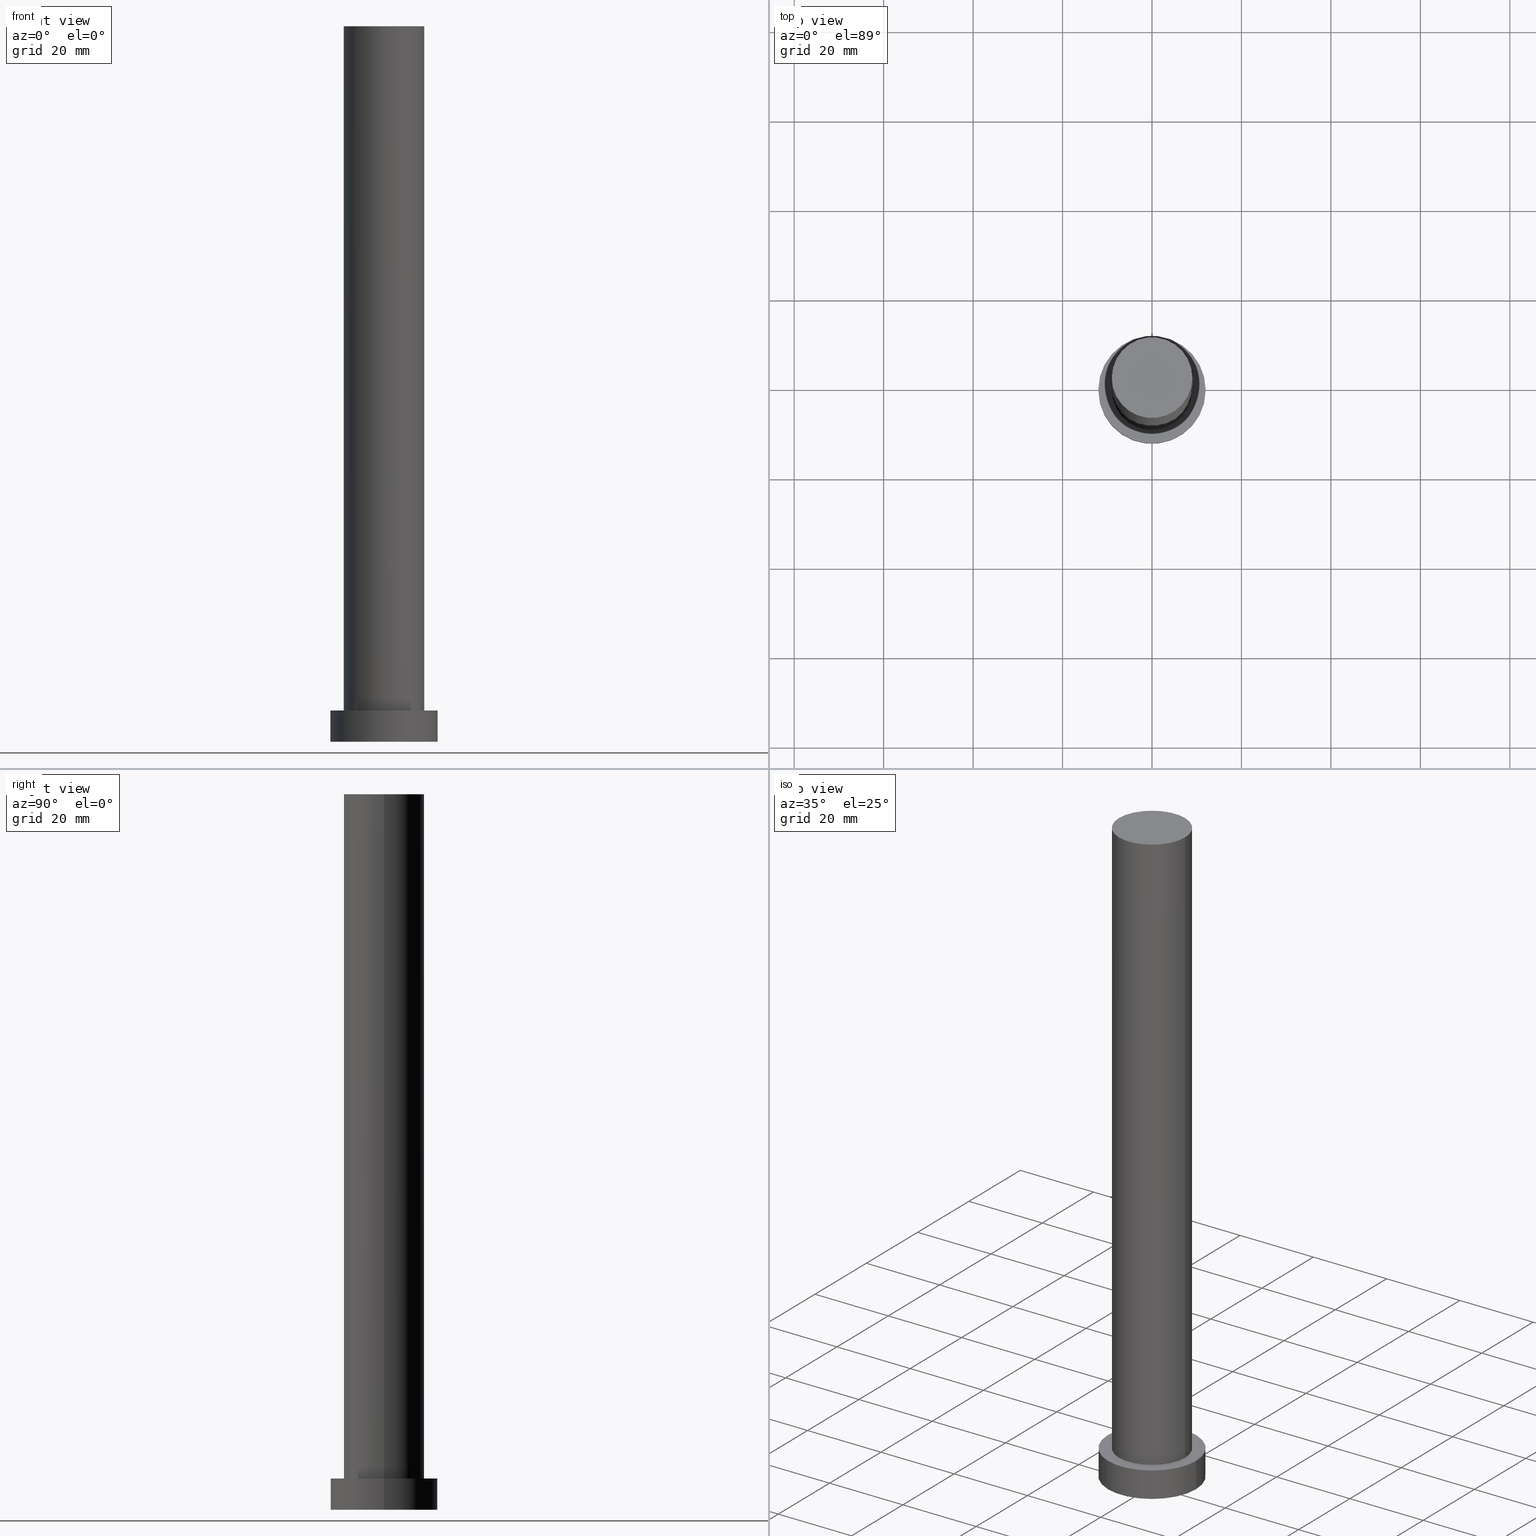
[diagram: canonical four-view strip — front | top / right | iso, engineering-drawing reading convention]
A machine part, canonical four-view strip (front | top / right | iso — engineering-drawing reading convention). The complete STEP part file that produces these views, byte-faithful:
ISO-10303-21;
HEADER;
FILE_DESCRIPTION (( 'STEP AP203' ),
    '1' );
FILE_NAME ('7385.STEP',
    '2023-02-13T07:36:13',
    ( '' ),
    ( '' ),
    'SwSTEP 2.0',
    'SolidWorks 2019',
    '' );
FILE_SCHEMA (( 'CONFIG_CONTROL_DESIGN' ));
ENDSEC;

DATA;
#1 = VERTEX_POINT ( 'NONE', #101 ) ;
#2 = APPROVAL ( #72, 'NEUR�EN�' ) ;
#3 = VERTEX_POINT ( 'NONE', #44 ) ;
#4 = DIRECTION ( 'NONE',  ( 0.000000000000000000, 0.000000000000000000, 1.000000000000000000 ) ) ;
#5 = LINE ( 'NONE', #227, #150 ) ;
#6 = LINE ( 'NONE', #86, #38 ) ;
#7 = DIRECTION ( 'NONE',  ( 1.000000000000000000, 0.000000000000000000, 0.000000000000000000 ) ) ;
#8 = CC_DESIGN_SECURITY_CLASSIFICATION ( #215, ( #23 ) ) ;
#9 = CYLINDRICAL_SURFACE ( 'NONE', #138, 9.000000000000000000 ) ;
#10 = EDGE_CURVE ( 'NONE', #177, #1, #235, .T. ) ;
#11 = AXIS2_PLACEMENT_3D ( 'NONE', #137, #154, #237 ) ;
#12 = DIRECTION ( 'NONE',  ( 0.000000000000000000, 0.000000000000000000, 1.000000000000000000 ) ) ;
#13 = DATE_TIME_ROLE ( 'creation_date' ) ;
#14 = ADVANCED_FACE ( 'NONE', ( #98 ), #175, .T. ) ;
#15 =( LENGTH_UNIT ( ) NAMED_UNIT ( * ) SI_UNIT ( .MILLI., .METRE. ) );
#16 = DATE_AND_TIME ( #191, #228 ) ;
#17 = APPROVAL_PERSON_ORGANIZATION ( #74, #172, #64 ) ;
#18 = EDGE_CURVE ( 'NONE', #1, #254, #213, .T. ) ;
#19 = CIRCLE ( 'NONE', #157, 12.00000000000000178 ) ;
#20 = DIRECTION ( 'NONE',  ( 1.000000000000000000, 0.000000000000000000, 0.000000000000000000 ) ) ;
#21 = EDGE_CURVE ( 'NONE', #194, #199, #19, .T. ) ;
#22 = ORIENTED_EDGE ( 'NONE', *, *, #21, .T. ) ;
#23 = PRODUCT_DEFINITION_FORMATION_WITH_SPECIFIED_SOURCE ( 'LIBOVOLN�', '', #76, .NOT_KNOWN. ) ;
#24 = ORIENTED_EDGE ( 'NONE', *, *, #18, .F. ) ;
#25 = ORIENTED_EDGE ( 'NONE', *, *, #40, .T. ) ;
#26 = CARTESIAN_POINT ( 'NONE',  ( 0.000000000000000000, 0.000000000000000000, 7.000000000000000000 ) ) ;
#27 = DIRECTION ( 'NONE',  ( -0.000000000000000000, -0.000000000000000000, -1.000000000000000000 ) ) ;
#28 = DIRECTION ( 'NONE',  ( 0.000000000000000000, 0.000000000000000000, 1.000000000000000000 ) ) ;
#29 = DIRECTION ( 'NONE',  ( -0.000000000000000000, -0.000000000000000000, -1.000000000000000000 ) ) ;
#30 = EDGE_CURVE ( 'NONE', #1, #177, #192, .T. ) ;
#31 = DIRECTION ( 'NONE',  ( -0.000000000000000000, -0.000000000000000000, -1.000000000000000000 ) ) ;
#32 = CC_DESIGN_PERSON_AND_ORGANIZATION_ASSIGNMENT ( #129, #212, ( #49 ) ) ;
#33 = COORDINATED_UNIVERSAL_TIME_OFFSET ( 1, 0, .AHEAD. ) ;
#34 = APPLICATION_PROTOCOL_DEFINITION ( 'international standard', 'config_control_design', 1994, #111 ) ;
#35 = CALENDAR_DATE ( 2023, 13, 2 ) ;
#36 = DATE_AND_TIME ( #35, #155 ) ;
#37 = EDGE_LOOP ( 'NONE', ( #39, #197 ) ) ;
#38 = VECTOR ( 'NONE', #112, 1000.000000000000000 ) ;
#39 = ORIENTED_EDGE ( 'NONE', *, *, #83, .T. ) ;
#40 = EDGE_CURVE ( 'NONE', #3, #194, #202, .T. ) ;
#41 = APPROVAL_STATUS ( 'not_yet_approved' ) ;
#42 = ORIENTED_EDGE ( 'NONE', *, *, #123, .F. ) ;
#43 = AXIS2_PLACEMENT_3D ( 'NONE', #165, #247, #201 ) ;
#44 = CARTESIAN_POINT ( 'NONE',  ( 12.00000000000000178, 1.469576158976824144E-15, 7.000000000000000000 ) ) ;
#45 = CYLINDRICAL_SURFACE ( 'NONE', #245, 9.000000000000000000 ) ;
#46 = CC_DESIGN_DATE_AND_TIME_ASSIGNMENT ( #16, #171, ( #215 ) ) ;
#47 = DIRECTION ( 'NONE',  ( 0.000000000000000000, 0.000000000000000000, 1.000000000000000000 ) ) ;
#48 = DIRECTION ( 'NONE',  ( 0.000000000000000000, 0.000000000000000000, 1.000000000000000000 ) ) ;
#49 = PRODUCT_DEFINITION ( 'NEZN�M�', '', #23, #97 ) ;
#50 = CARTESIAN_POINT ( 'NONE',  ( 0.000000000000000000, 0.000000000000000000, 7.000000000000000000 ) ) ;
#51 = CARTESIAN_POINT ( 'NONE',  ( 0.000000000000000000, 0.000000000000000000, 160.0000000000000000 ) ) ;
#52 = APPROVAL_DATE_TIME ( #229, #2 ) ;
#53 = PERSON_AND_ORGANIZATION_ROLE ( 'design_supplier' ) ;
#54 = PERSON_AND_ORGANIZATION ( #153, #88 ) ;
#55 = AXIS2_PLACEMENT_3D ( 'NONE', #209, #114, #250 ) ;
#56 = MECHANICAL_CONTEXT ( 'NONE', #69, 'mechanical' ) ;
#57 = EDGE_CURVE ( 'NONE', #177, #65, #5, .T. ) ;
#58 = APPROVAL_DATE_TIME ( #176, #172 ) ;
#59 = ORIENTED_EDGE ( 'NONE', *, *, #21, .F. ) ;
#60 = ORIENTED_EDGE ( 'NONE', *, *, #239, .F. ) ;
#61 = CC_DESIGN_PERSON_AND_ORGANIZATION_ASSIGNMENT ( #54, #131, ( #215 ) ) ;
#62 = ORIENTED_EDGE ( 'NONE', *, *, #10, .T. ) ;
#63 = ORIENTED_EDGE ( 'NONE', *, *, #83, .F. ) ;
#64 = APPROVAL_ROLE ( '' ) ;
#65 = VERTEX_POINT ( 'NONE', #124 ) ;
#66 = DIRECTION ( 'NONE',  ( 1.000000000000000000, 0.000000000000000000, 0.000000000000000000 ) ) ;
#67 = PLANE ( 'NONE',  #80 ) ;
#68 = DIRECTION ( 'NONE',  ( -0.000000000000000000, -0.000000000000000000, -1.000000000000000000 ) ) ;
#69 = APPLICATION_CONTEXT ( 'configuration controlled 3d designs of mechanical parts and assemblies' ) ;
#70 = CARTESIAN_POINT ( 'NONE',  ( 0.000000000000000000, 0.000000000000000000, 7.000000000000000000 ) ) ;
#71 = DIRECTION ( 'NONE',  ( 1.000000000000000000, 0.000000000000000000, 0.000000000000000000 ) ) ;
#72 = APPROVAL_STATUS ( 'not_yet_approved' ) ;
#73 = AXIS2_PLACEMENT_3D ( 'NONE', #70, #127, #246 ) ;
#74 = PERSON_AND_ORGANIZATION ( #153, #88 ) ;
#75 = CC_DESIGN_APPROVAL ( #180, ( #49 ) ) ;
#76 = PRODUCT ( '7385', '7385', '', ( #56 ) ) ;
#77 = APPROVAL_PERSON_ORGANIZATION ( #116, #2, #167 ) ;
#78 = EDGE_CURVE ( 'NONE', #103, #199, #6, .T. ) ;
#79 = ORIENTED_EDGE ( 'NONE', *, *, #239, .T. ) ;
#80 = AXIS2_PLACEMENT_3D ( 'NONE', #221, #47, #96 ) ;
#81 = EDGE_LOOP ( 'NONE', ( #253, #25, #22, #159 ) ) ;
#82 = ORIENTED_EDGE ( 'NONE', *, *, #30, .T. ) ;
#83 = EDGE_CURVE ( 'NONE', #103, #3, #182, .T. ) ;
#84 = EDGE_LOOP ( 'NONE', ( #178, #63, #100, #79 ) ) ;
#85 = PLANE ( 'NONE',  #168 ) ;
#86 = CARTESIAN_POINT ( 'NONE',  ( -12.00000000000000178, 0.000000000000000000, 7.000000000000000000 ) ) ;
#87 = DIRECTION ( 'NONE',  ( -0.000000000000000000, -0.000000000000000000, -1.000000000000000000 ) ) ;
#88 = ORGANIZATION ( 'NEUR�EN�', 'NEUR�EN�', '' ) ;
#89 = CYLINDRICAL_SURFACE ( 'NONE', #43, 12.00000000000000178 ) ;
#90 = CYLINDRICAL_SURFACE ( 'NONE', #216, 12.00000000000000178 ) ;
#91 = CC_DESIGN_DATE_AND_TIME_ASSIGNMENT ( #36, #13, ( #49 ) ) ;
#92 =( NAMED_UNIT ( * ) SI_UNIT ( $, .STERADIAN. ) SOLID_ANGLE_UNIT ( ) );
#93 = APPROVAL_ROLE ( '' ) ;
#94 = AXIS2_PLACEMENT_3D ( 'NONE', #181, #224, #146 ) ;
#95 = DIRECTION ( 'NONE',  ( 0.000000000000000000, 0.000000000000000000, 1.000000000000000000 ) ) ;
#96 = DIRECTION ( 'NONE',  ( 1.000000000000000000, 0.000000000000000000, -0.000000000000000000 ) ) ;
#97 = DESIGN_CONTEXT ( 'detailed design', #111, 'design' ) ;
#98 = FACE_OUTER_BOUND ( 'NONE', #238, .T. ) ;
#99 = EDGE_LOOP ( 'NONE', ( #60, #59 ) ) ;
#100 = ORIENTED_EDGE ( 'NONE', *, *, #78, .T. ) ;
#101 = CARTESIAN_POINT ( 'NONE',  ( 9.000000000000000000, 1.102182119232617714E-15, 160.0000000000000000 ) ) ;
#102 = ADVANCED_FACE ( 'NONE', ( #244 ), #9, .T. ) ;
#103 = VERTEX_POINT ( 'NONE', #122 ) ;
#104 = CARTESIAN_POINT ( 'NONE',  ( 0.000000000000000000, 0.000000000000000000, 160.0000000000000000 ) ) ;
#105 = CARTESIAN_POINT ( 'NONE',  ( 12.00000000000000178, 1.469576158976824144E-15, 7.000000000000000000 ) ) ;
#106 = AXIS2_PLACEMENT_3D ( 'NONE', #148, #161, #7 ) ;
#107 = FACE_OUTER_BOUND ( 'NONE', #37, .T. ) ;
#108 = ADVANCED_BREP_SHAPE_REPRESENTATION ( '7385', ( #173, #255 ), #132 ) ;
#109 = CARTESIAN_POINT ( 'NONE',  ( 0.000000000000000000, 0.000000000000000000, 0.000000000000000000 ) ) ;
#110 = CC_DESIGN_APPROVAL ( #172, ( #215 ) ) ;
#111 = APPLICATION_CONTEXT ( 'configuration controlled 3d designs of mechanical parts and assemblies' ) ;
#112 = DIRECTION ( 'NONE',  ( -0.000000000000000000, -0.000000000000000000, -1.000000000000000000 ) ) ;
#113 = SECURITY_CLASSIFICATION_LEVEL ( 'unclassified' ) ;
#114 = DIRECTION ( 'NONE',  ( 0.000000000000000000, 0.000000000000000000, 1.000000000000000000 ) ) ;
#115 = AXIS2_PLACEMENT_3D ( 'NONE', #50, #48, #66 ) ;
#116 = PERSON_AND_ORGANIZATION ( #153, #88 ) ;
#117 = LOCAL_TIME ( 8, 36, 12.00000000000000000, #135 ) ;
#118 = ORIENTED_EDGE ( 'NONE', *, *, #30, .F. ) ;
#119 = CC_DESIGN_PERSON_AND_ORGANIZATION_ASSIGNMENT ( #231, #169, ( #23 ) ) ;
#120 = ORIENTED_EDGE ( 'NONE', *, *, #57, .F. ) ;
#121 = ORIENTED_EDGE ( 'NONE', *, *, #193, .F. ) ;
#122 = CARTESIAN_POINT ( 'NONE',  ( -12.00000000000000178, 0.000000000000000000, 7.000000000000000000 ) ) ;
#123 = EDGE_CURVE ( 'NONE', #65, #254, #170, .T. ) ;
#124 = CARTESIAN_POINT ( 'NONE',  ( -9.000000000000000000, 0.000000000000000000, 7.000000000000000000 ) ) ;
#125 = CARTESIAN_POINT ( 'NONE',  ( -9.000000000000000000, 0.000000000000000000, 160.0000000000000000 ) ) ;
#126 = DIRECTION ( 'NONE',  ( 1.000000000000000000, 0.000000000000000000, -0.000000000000000000 ) ) ;
#127 = DIRECTION ( 'NONE',  ( 0.000000000000000000, 0.000000000000000000, 1.000000000000000000 ) ) ;
#128 = LOCAL_TIME ( 8, 36, 12.00000000000000000, #189 ) ;
#129 = PERSON_AND_ORGANIZATION ( #153, #88 ) ;
#130 = PERSON_AND_ORGANIZATION ( #153, #88 ) ;
#131 = PERSON_AND_ORGANIZATION_ROLE ( 'classification_officer' ) ;
#132 =( GEOMETRIC_REPRESENTATION_CONTEXT ( 3 ) GLOBAL_UNCERTAINTY_ASSIGNED_CONTEXT ( ( #136 ) ) GLOBAL_UNIT_ASSIGNED_CONTEXT ( ( #15, #249, #92 ) ) REPRESENTATION_CONTEXT ( 'NONE', 'WORKASPACE' ) );
#133 = CARTESIAN_POINT ( 'NONE',  ( 9.000000000000000000, 1.102182119232617714E-15, 7.000000000000000000 ) ) ;
#134 = APPROVAL_DATE_TIME ( #149, #180 ) ;
#135 = COORDINATED_UNIVERSAL_TIME_OFFSET ( 1, 0, .AHEAD. ) ;
#136 = UNCERTAINTY_MEASURE_WITH_UNIT (LENGTH_MEASURE( 1.000000000000000082E-05 ), #15, 'distance_accuracy_value', 'NONE');
#137 = CARTESIAN_POINT ( 'NONE',  ( 0.000000000000000000, 0.000000000000000000, 160.0000000000000000 ) ) ;
#138 = AXIS2_PLACEMENT_3D ( 'NONE', #51, #68, #145 ) ;
#139 = ORIENTED_EDGE ( 'NONE', *, *, #57, .T. ) ;
#140 = CC_DESIGN_PERSON_AND_ORGANIZATION_ASSIGNMENT ( #151, #208, ( #76 ) ) ;
#141 = EDGE_LOOP ( 'NONE', ( #42, #121 ) ) ;
#142 = VECTOR ( 'NONE', #27, 1000.000000000000000 ) ;
#143 = FACE_BOUND ( 'NONE', #141, .T. ) ;
#144 = CARTESIAN_POINT ( 'NONE',  ( 0.000000000000000000, 0.000000000000000000, 7.000000000000000000 ) ) ;
#145 = DIRECTION ( 'NONE',  ( -1.000000000000000000, 0.000000000000000000, 0.000000000000000000 ) ) ;
#146 = DIRECTION ( 'NONE',  ( 1.000000000000000000, 0.000000000000000000, 0.000000000000000000 ) ) ;
#147 = EDGE_CURVE ( 'NONE', #3, #103, #225, .T. ) ;
#148 = CARTESIAN_POINT ( 'NONE',  ( 0.000000000000000000, 0.000000000000000000, 160.0000000000000000 ) ) ;
#149 = DATE_AND_TIME ( #248, #128 ) ;
#150 = VECTOR ( 'NONE', #183, 1000.000000000000000 ) ;
#151 = PERSON_AND_ORGANIZATION ( #153, #88 ) ;
#152 = CALENDAR_DATE ( 2023, 13, 2 ) ;
#153 = PERSON ( 'NEUR�EN�', 'NEUR�EN�', 'NEUR�EN�', ('NEUR�EN�'), ('NEUR�EN�'), ('NEUR�EN�') ) ;
#154 = DIRECTION ( 'NONE',  ( 0.000000000000000000, 0.000000000000000000, 1.000000000000000000 ) ) ;
#155 = LOCAL_TIME ( 8, 36, 12.00000000000000000, #33 ) ;
#156 = ORIENTED_EDGE ( 'NONE', *, *, #10, .F. ) ;
#157 = AXIS2_PLACEMENT_3D ( 'NONE', #109, #12, #187 ) ;
#158 = ORIENTED_EDGE ( 'NONE', *, *, #18, .T. ) ;
#159 = ORIENTED_EDGE ( 'NONE', *, *, #78, .F. ) ;
#160 = DIRECTION ( 'NONE',  ( -1.000000000000000000, 0.000000000000000000, 0.000000000000000000 ) ) ;
#161 = DIRECTION ( 'NONE',  ( 0.000000000000000000, 0.000000000000000000, 1.000000000000000000 ) ) ;
#162 = LOCAL_TIME ( 8, 36, 12.00000000000000000, #190 ) ;
#163 = CARTESIAN_POINT ( 'NONE',  ( 12.00000000000000178, 1.469576158976824144E-15, 0.000000000000000000 ) ) ;
#164 = ADVANCED_FACE ( 'NONE', ( #207 ), #90, .T. ) ;
#165 = CARTESIAN_POINT ( 'NONE',  ( 0.000000000000000000, 0.000000000000000000, 7.000000000000000000 ) ) ;
#166 = APPLICATION_PROTOCOL_DEFINITION ( 'international standard', 'config_control_design', 1994, #69 ) ;
#167 = APPROVAL_ROLE ( '' ) ;
#168 = AXIS2_PLACEMENT_3D ( 'NONE', #26, #184, #126 ) ;
#169 = PERSON_AND_ORGANIZATION_ROLE ( 'creator' ) ;
#170 = CIRCLE ( 'NONE', #94, 9.000000000000000000 ) ;
#171 = DATE_TIME_ROLE ( 'classification_date' ) ;
#172 = APPROVAL ( #41, 'NEUR�EN�' ) ;
#173 = MANIFOLD_SOLID_BREP ( 'P�idat vysunut�m3', #174 ) ;
#174 = CLOSED_SHELL ( 'NONE', ( #102, #185, #164, #200, #230, #222, #14 ) ) ;
#175 = PLANE ( 'NONE',  #11 ) ;
#176 = DATE_AND_TIME ( #236, #117 ) ;
#177 = VERTEX_POINT ( 'NONE', #125 ) ;
#178 = ORIENTED_EDGE ( 'NONE', *, *, #40, .F. ) ;
#179 = CARTESIAN_POINT ( 'NONE',  ( 0.000000000000000000, 0.000000000000000000, 160.0000000000000000 ) ) ;
#180 = APPROVAL ( #211, 'NEUR�EN�' ) ;
#181 = CARTESIAN_POINT ( 'NONE',  ( 0.000000000000000000, 0.000000000000000000, 7.000000000000000000 ) ) ;
#182 = CIRCLE ( 'NONE', #73, 12.00000000000000178 ) ;
#183 = DIRECTION ( 'NONE',  ( -0.000000000000000000, -0.000000000000000000, -1.000000000000000000 ) ) ;
#184 = DIRECTION ( 'NONE',  ( 0.000000000000000000, 0.000000000000000000, 1.000000000000000000 ) ) ;
#185 = ADVANCED_FACE ( 'NONE', ( #205 ), #89, .T. ) ;
#186 = CARTESIAN_POINT ( 'NONE',  ( 9.000000000000000000, 1.102182119232617714E-15, 160.0000000000000000 ) ) ;
#187 = DIRECTION ( 'NONE',  ( 1.000000000000000000, 0.000000000000000000, 0.000000000000000000 ) ) ;
#188 = PRODUCT_RELATED_PRODUCT_CATEGORY ( 'detail', '', ( #76 ) ) ;
#189 = COORDINATED_UNIVERSAL_TIME_OFFSET ( 1, 0, .AHEAD. ) ;
#190 = COORDINATED_UNIVERSAL_TIME_OFFSET ( 1, 0, .AHEAD. ) ;
#191 = CALENDAR_DATE ( 2023, 13, 2 ) ;
#192 = CIRCLE ( 'NONE', #106, 9.000000000000000000 ) ;
#193 = EDGE_CURVE ( 'NONE', #254, #65, #241, .T. ) ;
#194 = VERTEX_POINT ( 'NONE', #163 ) ;
#195 = EDGE_LOOP ( 'NONE', ( #118, #158, #240, #120 ) ) ;
#196 = SHAPE_DEFINITION_REPRESENTATION ( #251, #108 ) ;
#197 = ORIENTED_EDGE ( 'NONE', *, *, #147, .T. ) ;
#198 = AXIS2_PLACEMENT_3D ( 'NONE', #204, #28, #71 ) ;
#199 = VERTEX_POINT ( 'NONE', #226 ) ;
#200 = ADVANCED_FACE ( 'NONE', ( #143, #107 ), #85, .T. ) ;
#201 = DIRECTION ( 'NONE',  ( -1.000000000000000000, 0.000000000000000000, 0.000000000000000000 ) ) ;
#202 = LINE ( 'NONE', #105, #203 ) ;
#203 = VECTOR ( 'NONE', #31, 1000.000000000000000 ) ;
#204 = CARTESIAN_POINT ( 'NONE',  ( 0.000000000000000000, 0.000000000000000000, 7.000000000000000000 ) ) ;
#205 = FACE_OUTER_BOUND ( 'NONE', #81, .T. ) ;
#206 = APPROVAL_PERSON_ORGANIZATION ( #232, #180, #93 ) ;
#207 = FACE_OUTER_BOUND ( 'NONE', #84, .T. ) ;
#208 = PERSON_AND_ORGANIZATION_ROLE ( 'design_owner' ) ;
#209 = CARTESIAN_POINT ( 'NONE',  ( 0.000000000000000000, 0.000000000000000000, 0.000000000000000000 ) ) ;
#210 = COORDINATED_UNIVERSAL_TIME_OFFSET ( 1, 0, .AHEAD. ) ;
#211 = APPROVAL_STATUS ( 'not_yet_approved' ) ;
#212 = PERSON_AND_ORGANIZATION_ROLE ( 'creator' ) ;
#213 = LINE ( 'NONE', #186, #142 ) ;
#214 = ORIENTED_EDGE ( 'NONE', *, *, #123, .T. ) ;
#215 = SECURITY_CLASSIFICATION ( '', '', #113 ) ;
#216 = AXIS2_PLACEMENT_3D ( 'NONE', #144, #87, #242 ) ;
#217 = CC_DESIGN_PERSON_AND_ORGANIZATION_ASSIGNMENT ( #130, #53, ( #23 ) ) ;
#218 = EDGE_LOOP ( 'NONE', ( #24, #156, #139, #214 ) ) ;
#219 = AXIS2_PLACEMENT_3D ( 'NONE', #179, #4, #20 ) ;
#220 = FACE_OUTER_BOUND ( 'NONE', #218, .T. ) ;
#221 = CARTESIAN_POINT ( 'NONE',  ( 0.000000000000000000, 0.000000000000000000, 0.000000000000000000 ) ) ;
#222 = ADVANCED_FACE ( 'NONE', ( #220 ), #45, .T. ) ;
#223 = CIRCLE ( 'NONE', #55, 12.00000000000000178 ) ;
#224 = DIRECTION ( 'NONE',  ( 0.000000000000000000, 0.000000000000000000, 1.000000000000000000 ) ) ;
#225 = CIRCLE ( 'NONE', #115, 12.00000000000000178 ) ;
#226 = CARTESIAN_POINT ( 'NONE',  ( -12.00000000000000178, 0.000000000000000000, 0.000000000000000000 ) ) ;
#227 = CARTESIAN_POINT ( 'NONE',  ( -9.000000000000000000, 0.000000000000000000, 160.0000000000000000 ) ) ;
#228 = LOCAL_TIME ( 8, 36, 12.00000000000000000, #210 ) ;
#229 = DATE_AND_TIME ( #152, #162 ) ;
#230 = ADVANCED_FACE ( 'NONE', ( #243 ), #67, .F. ) ;
#231 = PERSON_AND_ORGANIZATION ( #153, #88 ) ;
#232 = PERSON_AND_ORGANIZATION ( #153, #88 ) ;
#233 = CC_DESIGN_APPROVAL ( #2, ( #23 ) ) ;
#234 = DIRECTION ( 'NONE',  ( 1.000000000000000000, 0.000000000000000000, 0.000000000000000000 ) ) ;
#235 = CIRCLE ( 'NONE', #219, 9.000000000000000000 ) ;
#236 = CALENDAR_DATE ( 2023, 13, 2 ) ;
#237 = DIRECTION ( 'NONE',  ( 1.000000000000000000, 0.000000000000000000, -0.000000000000000000 ) ) ;
#238 = EDGE_LOOP ( 'NONE', ( #62, #82 ) ) ;
#239 = EDGE_CURVE ( 'NONE', #199, #194, #223, .T. ) ;
#240 = ORIENTED_EDGE ( 'NONE', *, *, #193, .T. ) ;
#241 = CIRCLE ( 'NONE', #198, 9.000000000000000000 ) ;
#242 = DIRECTION ( 'NONE',  ( -1.000000000000000000, 0.000000000000000000, 0.000000000000000000 ) ) ;
#243 = FACE_OUTER_BOUND ( 'NONE', #99, .T. ) ;
#244 = FACE_OUTER_BOUND ( 'NONE', #195, .T. ) ;
#245 = AXIS2_PLACEMENT_3D ( 'NONE', #104, #29, #160 ) ;
#246 = DIRECTION ( 'NONE',  ( 1.000000000000000000, 0.000000000000000000, 0.000000000000000000 ) ) ;
#247 = DIRECTION ( 'NONE',  ( -0.000000000000000000, -0.000000000000000000, -1.000000000000000000 ) ) ;
#248 = CALENDAR_DATE ( 2023, 13, 2 ) ;
#249 =( NAMED_UNIT ( * ) PLANE_ANGLE_UNIT ( ) SI_UNIT ( $, .RADIAN. ) );
#250 = DIRECTION ( 'NONE',  ( 1.000000000000000000, 0.000000000000000000, 0.000000000000000000 ) ) ;
#251 = PRODUCT_DEFINITION_SHAPE ( 'NONE', 'NONE',  #49 ) ;
#252 = CARTESIAN_POINT ( 'NONE',  ( 0.000000000000000000, 0.000000000000000000, 0.000000000000000000 ) ) ;
#253 = ORIENTED_EDGE ( 'NONE', *, *, #147, .F. ) ;
#254 = VERTEX_POINT ( 'NONE', #133 ) ;
#255 = AXIS2_PLACEMENT_3D ( 'NONE', #252, #95, #234 ) ;
ENDSEC;
END-ISO-10303-21;
